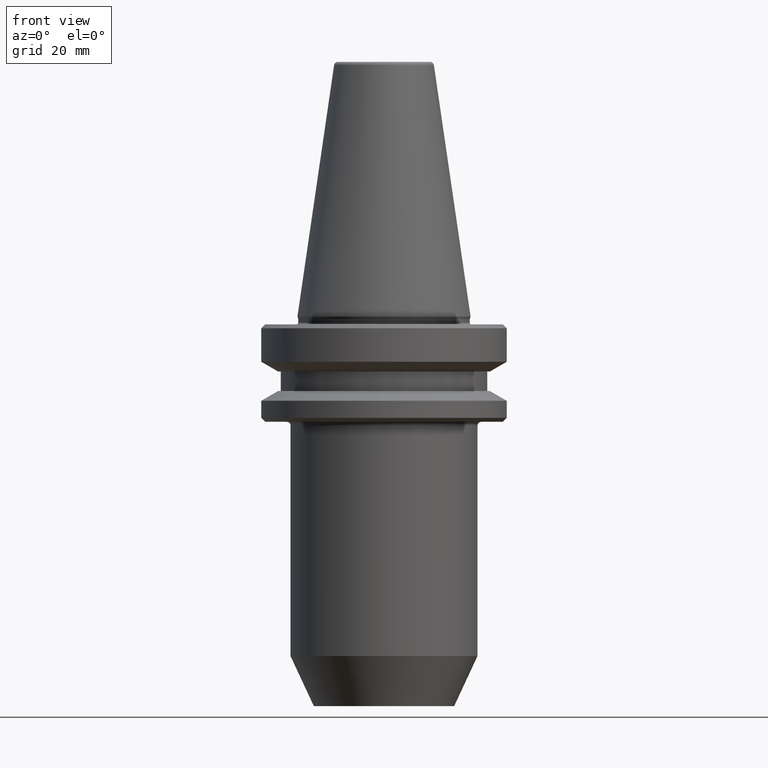
[diagram: clean part render]
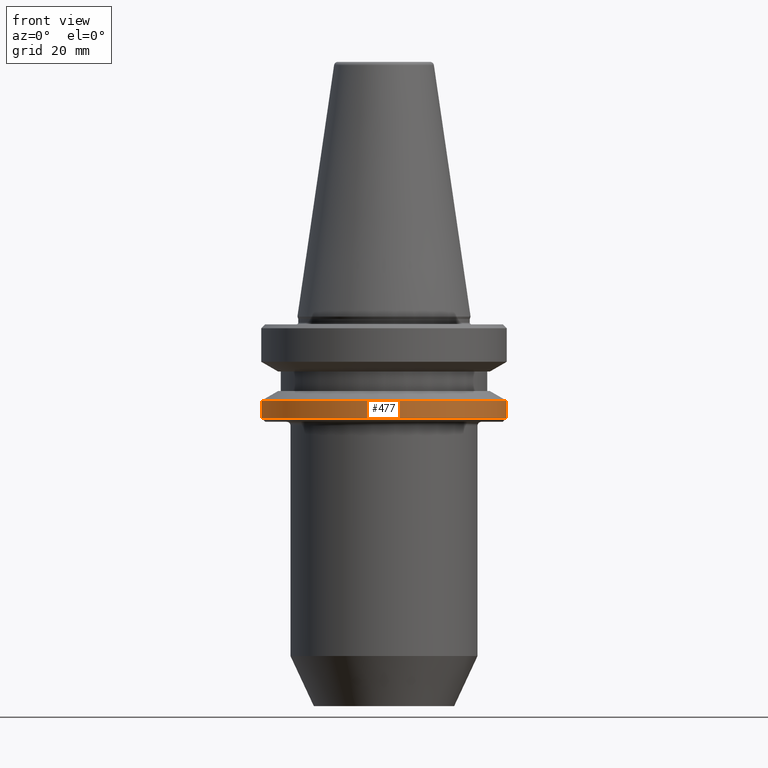
[diagram: same view with one face highlighted and labeled with its STEP entity id]
A machine part, front view. The second image highlights one B-rep face of the part: STEP entity #477.
In plain terms, the highlighted cylindrical surface (partial cylindrical patch) has radius 31.5 mm, axis along (-0, -0, 1).
Its self-contained STEP definition (entity closure, byte-faithful):
#18 = CARTESIAN_POINT ( 'NONE',  ( 31.50000000000019500, 0.0000000000000000000, -25.31128678844346400 ) ) ;
#29 = EDGE_CURVE ( 'NONE', #900, #890, #709, .T. ) ;
#41 = DIRECTION ( 'NONE',  ( -0.0000000000000000000, -0.0000000000000000000, 1.000000000000000000 ) ) ;
#47 = LINE ( 'NONE', #690, #905 ) ;
#75 = EDGE_CURVE ( 'NONE', #495, #890, #47, .T. ) ;
#84 = AXIS2_PLACEMENT_3D ( 'NONE', #990, #992, #979 ) ;
#108 = DIRECTION ( 'NONE',  ( 1.000000000000000000, 0.0000000000000000000, 0.0000000000000000000 ) ) ;
#187 = CARTESIAN_POINT ( 'NONE',  ( 0.0000000000000000000, 0.0000000000000000000, -25.31128678844346400 ) ) ;
#200 = VERTEX_POINT ( 'NONE', #897 ) ;
#237 = FACE_OUTER_BOUND ( 'NONE', #359, .T. ) ;
#299 = AXIS2_PLACEMENT_3D ( 'NONE', #778, #880, #108 ) ;
#344 = LINE ( 'NONE', #441, #734 ) ;
#346 = ORIENTED_EDGE ( 'NONE', *, *, #448, .T. ) ;
#359 = EDGE_LOOP ( 'NONE', ( #840, #346, #920, #754 ) ) ;
#365 = AXIS2_PLACEMENT_3D ( 'NONE', #187, #596, #910 ) ;
#441 = CARTESIAN_POINT ( 'NONE',  ( -31.50000000000019500, 3.857637417314186400E-015, 82.74845858742440900 ) ) ;
#448 = EDGE_CURVE ( 'NONE', #200, #495, #693, .T. ) ;
#477 = ADVANCED_FACE ( 'NONE', ( #237 ), #650, .T. ) ;
#495 = VERTEX_POINT ( 'NONE', #18 ) ;
#575 = EDGE_CURVE ( 'NONE', #200, #900, #344, .T. ) ;
#596 = DIRECTION ( 'NONE',  ( -0.0000000000000000000, -0.0000000000000000000, 1.000000000000000000 ) ) ;
#650 = CYLINDRICAL_SURFACE ( 'NONE', #299, 31.50000000000019500 ) ;
#690 = CARTESIAN_POINT ( 'NONE',  ( 31.50000000000019500, 0.0000000000000000000, 82.74845858742440900 ) ) ;
#693 = CIRCLE ( 'NONE', #365, 31.50000000000019500 ) ;
#709 = CIRCLE ( 'NONE', #84, 31.50000000000019500 ) ;
#734 = VECTOR ( 'NONE', #1018, 1000.000000000000000 ) ;
#754 = ORIENTED_EDGE ( 'NONE', *, *, #29, .F. ) ;
#778 = CARTESIAN_POINT ( 'NONE',  ( 0.0000000000000000000, 0.0000000000000000000, 82.74845858742440900 ) ) ;
#798 = CARTESIAN_POINT ( 'NONE',  ( 31.50000000000019500, 0.0000000000000000000, -20.91142879476059900 ) ) ;
#840 = ORIENTED_EDGE ( 'NONE', *, *, #575, .F. ) ;
#880 = DIRECTION ( 'NONE',  ( -0.0000000000000000000, -0.0000000000000000000, 1.000000000000000000 ) ) ;
#890 = VERTEX_POINT ( 'NONE', #798 ) ;
#896 = CARTESIAN_POINT ( 'NONE',  ( -31.50000000000019500, 3.857637417314186400E-015, -20.91142879476059900 ) ) ;
#897 = CARTESIAN_POINT ( 'NONE',  ( -31.50000000000019500, 3.857637417314186400E-015, -25.31128678844346400 ) ) ;
#900 = VERTEX_POINT ( 'NONE', #896 ) ;
#905 = VECTOR ( 'NONE', #41, 1000.000000000000000 ) ;
#910 = DIRECTION ( 'NONE',  ( 1.000000000000000000, 0.0000000000000000000, 0.0000000000000000000 ) ) ;
#920 = ORIENTED_EDGE ( 'NONE', *, *, #75, .T. ) ;
#979 = DIRECTION ( 'NONE',  ( 1.000000000000000000, 0.0000000000000000000, 0.0000000000000000000 ) ) ;
#990 = CARTESIAN_POINT ( 'NONE',  ( 0.0000000000000000000, 0.0000000000000000000, -20.91142879476059900 ) ) ;
#992 = DIRECTION ( 'NONE',  ( -0.0000000000000000000, -0.0000000000000000000, 1.000000000000000000 ) ) ;
#1018 = DIRECTION ( 'NONE',  ( -0.0000000000000000000, -0.0000000000000000000, 1.000000000000000000 ) ) ;